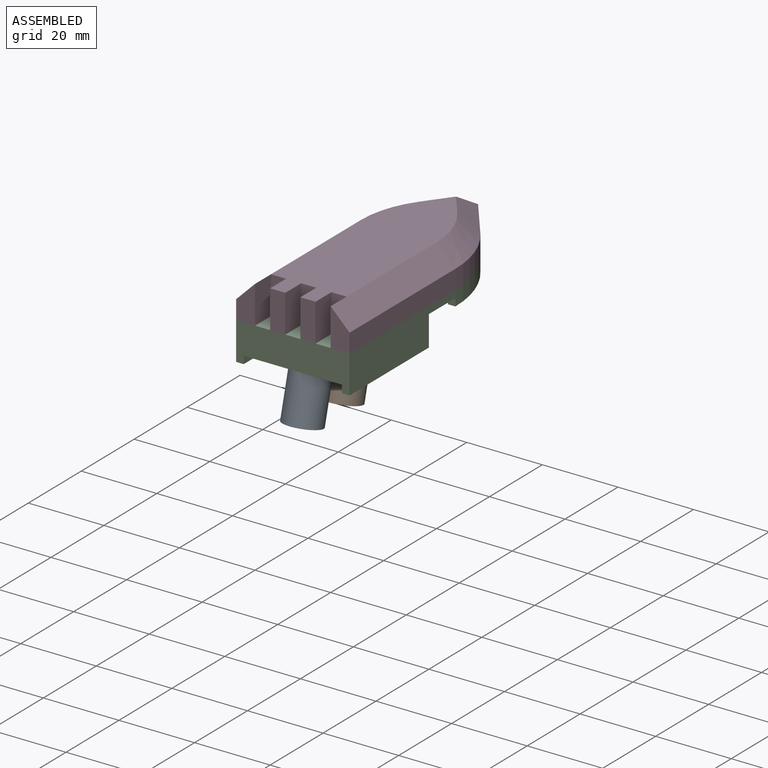
[diagram: assembled view]
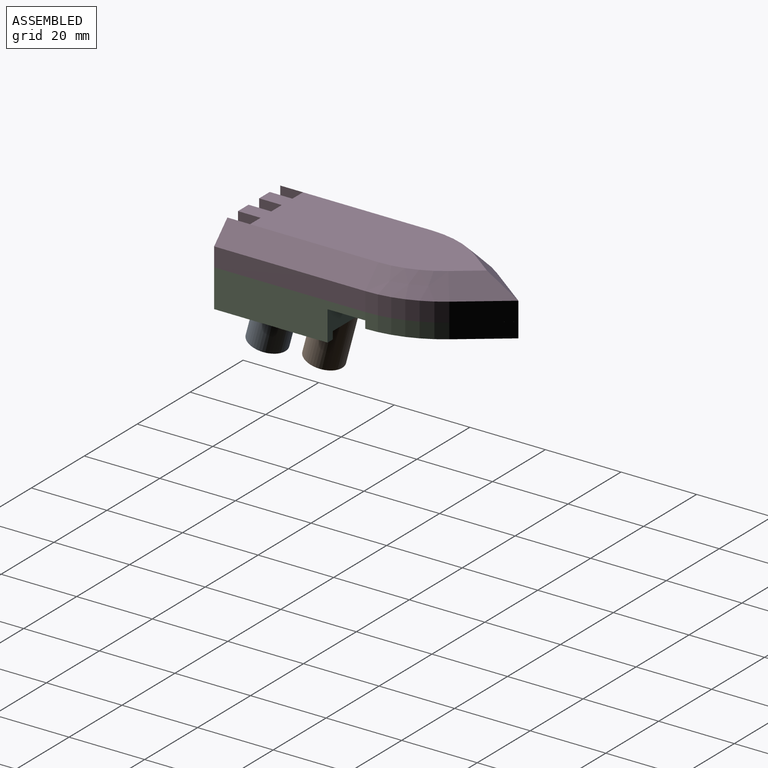
[diagram: assembled view, second angle]
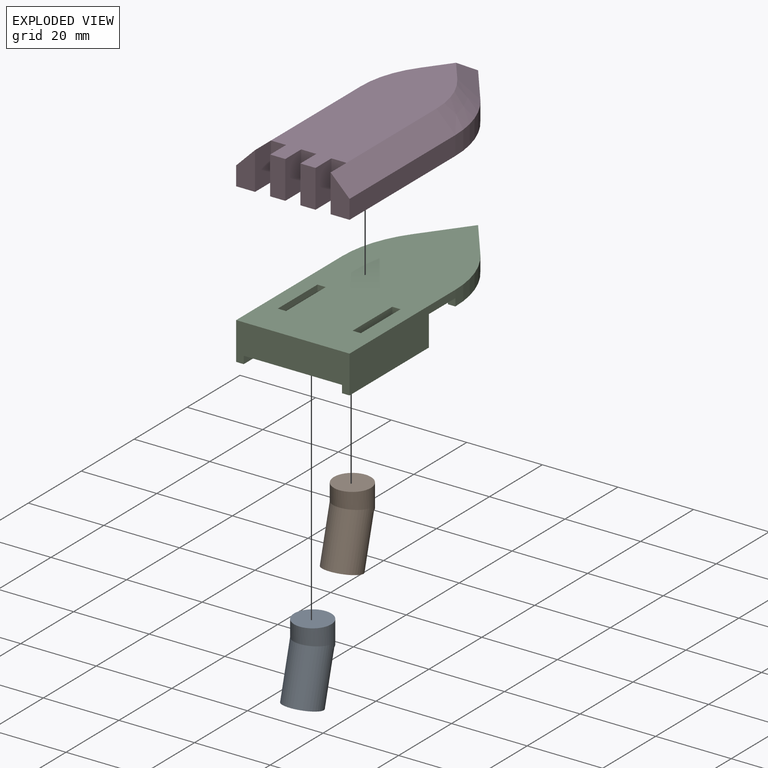
[diagram: exploded view]
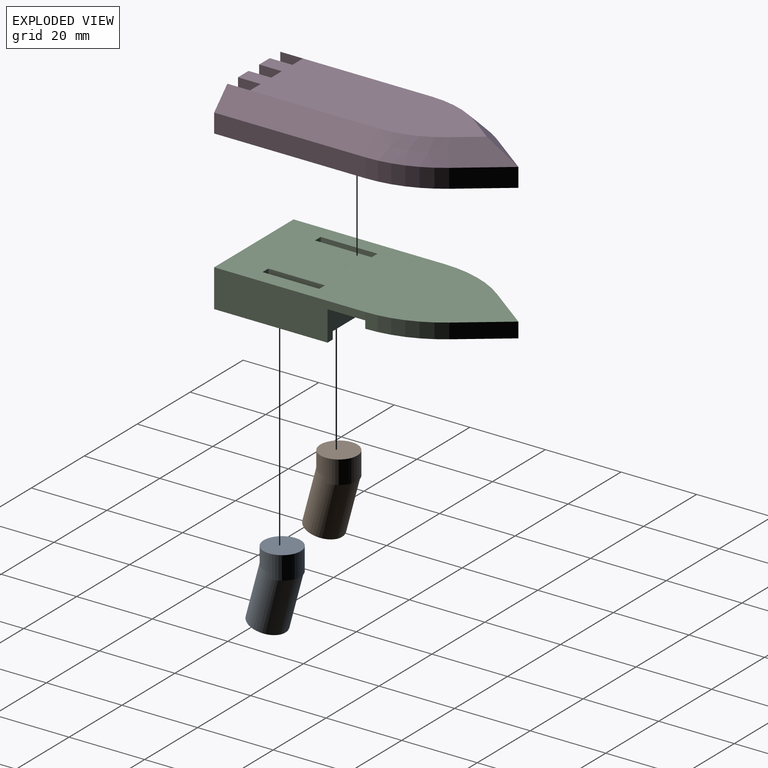
[diagram: exploded view, second angle]
ASSEMBLY  parts=4 mates=3
PART A: 7 faces, bbox 9.8x13.5x20.6 mm
  f0: cylinder r=4.9mm len=17.03mm, axis (0,0.26,0.97), area 448.1mm2, adj f1,f3,f4,f5,f6
  f1: cylinder r=4.9mm len=9.8mm, axis (0,0,-1), area 161.5mm2, adj f0,f2,f4,f5,f6
  f2: plane 9.8x9.8mm, normal (0,0,1), area 75.4mm2, adj f1
  f3: plane 9.8x9.47mm, normal (0,-0.26,-0.97), area 75.4mm2, adj f0
  f4: plane 1.3x0.01mm, normal (0,-1,0), area 0mm2, adj f0,f1,f6
  f5: plane 1.3x0.01mm, normal (0,-1,0), area 0mm2, adj f0,f1,f6
  f6: plane 9.8x4.9mm, normal (0,0,-1), area 2.1mm2, adj f0,f1,f4,f5
PART B: same geometry as A
PART C: 36 faces, bbox 30x70x10 mm
  f0: plane 70x30mm, normal (0,0,-1), area 1713.2mm2, adj f3,f4,f5,f7,f8,f9,f10,f26
  f1: plane 30x26mm, normal (0,0,1), area 622.9mm2, adj f5,f17,f18,f20,f22,f24
  f2: plane 36.67x30mm, normal (0,0,1), area 749.8mm2, adj f3,f4,f11,f12,f13,f14,f15,f16
  f3: plane 40x10mm, normal (1,0,0), area 320mm2, adj f0,f2,f5,f10,f17,f23
  f4: plane 40x10mm, normal (-1,0,0), area 320mm2, adj f0,f2,f5,f9,f17,f25
  f5: plane 30x10mm, normal (0,-1,0), area 248mm2, adj f0,f1,f3,f4,f22,f23,f24,f25
  f6: plane 30x30mm, normal (0,0,1), area 129.3mm2, adj f7,f8,f9,f10,f11,f12,f13,f14
  f7: plane 12x9mm, normal (0.8,0.6,0), area 60mm2, adj f0,f6,f8,f10
  f8: plane 12x9mm, normal (-0.8,0.6,0), area 60mm2, adj f0,f6,f7,f9
  f9: cylinder r=30mm len=18mm, axis (0,0,1), area 77.2mm2, adj f0,f4,f6,f8,f15
  f10: cylinder r=30mm len=18mm, axis (0,0,1), area 77.2mm2, adj f0,f3,f6,f7,f16
  f11: cylinder r=28mm len=16.8mm, axis (0,0,-1), area 36mm2, adj f2,f6,f12,f15
  f12: plane 9.87x7.4mm, normal (0.8,-0.6,0), area 24.7mm2, adj f2,f6,f11,f13
  f13: plane 9.87x7.4mm, normal (-0.8,-0.6,0), area 24.7mm2, adj f2,f6,f12,f14
  f14: cylinder r=28mm len=16.8mm, axis (0,0,-1), area 36mm2, adj f2,f6,f13,f16
  f15: plane 2x2mm, normal (0,-1,0), area 4mm2, adj f2,f6,f9,f11
  f16: plane 2x2mm, normal (0,-1,0), area 4mm2, adj f2,f6,f10,f14
  f17: plane 30x8mm, normal (0,1,0), area 188mm2, adj f1,f2,f3,f4,f22,f23,f24,f25
  f18: cylinder r=5mm len=10mm, axis (0,0,1), area 157.1mm2, adj f1,f19
  f19: plane 10x10mm, normal (0,0,1), area 78.5mm2, adj f18
  f20: cylinder r=5mm len=10mm, axis (0,0,1), area 157.1mm2, adj f1,f21
  f21: plane 10x10mm, normal (0,0,1), area 78.5mm2, adj f20
  f22: plane 30x2mm, normal (-1,0,0), area 60mm2, adj f1,f5,f17,f23
  f23: plane 30x2mm, normal (0,0,1), area 60mm2, adj f3,f5,f17,f22
  f24: plane 30x2mm, normal (1,0,0), area 60mm2, adj f1,f5,f17,f25
  f25: plane 30x2mm, normal (0,0,1), area 60mm2, adj f4,f5,f17,f24
  f26: plane 15x5mm, normal (-1,0,0), area 75mm2, adj f0,f27,f29,f30
  f27: plane 5x2.2mm, normal (0,1,0), area 11mm2, adj f0,f26,f28,f30
  f28: plane 15x5mm, normal (1,0,0), area 75mm2, adj f0,f27,f29,f30
  f29: plane 5x2.2mm, normal (0,-1,0), area 11mm2, adj f0,f26,f28,f30
  f30: plane 15x2.2mm, normal (0,0,-1), area 33mm2, adj f26,f27,f28,f29
  f31: plane 5x2.2mm, normal (0,1,0), area 11mm2, adj f0,f32,f34,f35
  f32: plane 15x5mm, normal (1,0,0), area 75mm2, adj f0,f31,f33,f35
  f33: plane 5x2.2mm, normal (0,-1,0), area 11mm2, adj f0,f32,f34,f35
  f34: plane 15x5mm, normal (-1,0,0), area 75mm2, adj f0,f31,f33,f35
  f35: plane 15x2.2mm, normal (0,0,-1), area 33mm2, adj f31,f32,f33,f34
PART D: 37 faces, bbox 30x70x10 mm
  f0: plane 70x30mm, normal (0,0,-1), area 1641.2mm2, adj f1,f2,f3,f5,f6,f7,f8,f9
  f1: plane 10x4mm, normal (0,-1,0), area 40mm2, adj f0,f4,f21,f25
  f2: plane 10x5mm, normal (0,-1,0), area 37.5mm2, adj f0,f5,f12,f24
  f3: plane 10x5mm, normal (0,-1,0), area 37.5mm2, adj f0,f8,f14,f18
  f4: plane 61.67x20mm, normal (0,0,1), area 1013.5mm2, adj f1,f9,f12,f13,f14,f15,f16,f17
  f5: plane 40x5mm, normal (1,0,0), area 200mm2, adj f0,f2,f11,f12
  f6: plane 12x9mm, normal (0.8,0.6,0), area 75mm2, adj f0,f7,f11,f15
  f7: plane 12x9mm, normal (-0.8,0.6,0), area 75mm2, adj f0,f6,f10,f17
  f8: plane 40x5mm, normal (-1,0,0), area 200mm2, adj f0,f3,f10,f14
  f9: plane 10x4mm, normal (0,-1,0), area 40mm2, adj f0,f4,f19,f22
  f10: cylinder r=30mm len=18mm, axis (0,0,1), area 96.5mm2, adj f0,f7,f8,f16
  f11: cylinder r=30mm len=18mm, axis (0,0,1), area 96.5mm2, adj f0,f5,f6,f13
  f12: plane 40x5mm, normal (0.71,0,0.71), area 282.8mm2, adj f2,f4,f5,f13,f24
  f13: cone r=25mm half-angle=45deg, axis (0,0,-1), area 125.1mm2, adj f4,f11,f12,f15
  f14: plane 40x5mm, normal (-0.71,0,0.71), area 282.8mm2, adj f3,f4,f8,f16,f18
  f15: plane 15x9mm, normal (0.57,0.42,0.71), area 82.5mm2, adj f4,f6,f13,f17
  f16: cone r=25mm half-angle=45deg, axis (0,0,-1), area 125.1mm2, adj f4,f10,f14,f17
  f17: plane 15x9mm, normal (-0.57,0.42,0.71), area 82.5mm2, adj f4,f7,f15,f16
  f18: plane 10x6mm, normal (1,0,0), area 60mm2, adj f0,f3,f14,f20
  f19: plane 10x6mm, normal (-1,0,0), area 60mm2, adj f0,f4,f9,f20
  f20: plane 10x4mm, normal (0,-1,0), area 40mm2, adj f0,f4,f18,f19
  f21: plane 10x6mm, normal (-1,0,0), area 60mm2, adj f0,f1,f4,f23
  f22: plane 10x6mm, normal (1,0,0), area 60mm2, adj f0,f4,f9,f23
  f23: plane 10x4mm, normal (0,-1,0), area 40mm2, adj f0,f4,f21,f22
  f24: plane 10x6mm, normal (-1,0,0), area 60mm2, adj f0,f2,f12,f26
  f25: plane 10x6mm, normal (1,0,0), area 60mm2, adj f0,f1,f4,f26
  f26: plane 10x4mm, normal (0,-1,0), area 40mm2, adj f0,f4,f24,f25
  f27: plane 5x2.2mm, normal (0,1,0), area 11mm2, adj f0,f28,f30,f31
  f28: plane 15x5mm, normal (1,0,0), area 75mm2, adj f0,f27,f29,f31
  f29: plane 5x2.2mm, normal (0,-1,0), area 11mm2, adj f0,f28,f30,f31
  f30: plane 15x5mm, normal (-1,0,0), area 75mm2, adj f0,f27,f29,f31
  f31: plane 15x2.2mm, normal (0,0,-1), area 33mm2, adj f27,f28,f29,f30
  f32: plane 15x5mm, normal (-1,0,0), area 75mm2, adj f0,f33,f35,f36
  f33: plane 5x2.2mm, normal (0,1,0), area 11mm2, adj f0,f32,f34,f36
  f34: plane 15x5mm, normal (1,0,0), area 75mm2, adj f0,f33,f35,f36
  f35: plane 5x2.2mm, normal (0,-1,0), area 11mm2, adj f0,f32,f34,f36
  f36: plane 15x2.2mm, normal (0,0,-1), area 33mm2, adj f32,f33,f34,f35
PLACE A t=(11.41,-11.63,1.13)mm
PLACE B t=(11.41,3.37,1.13)mm
PLACE C rot(axis=(0,1,0),180deg) t=(26.41,-19.13,8.93)mm
PLACE D t=(-3.59,-19.13,8.93)mm
MATE fastened C.f0 <-> D.f0  axis (0,0,1) through (11.41,50.87,8.93)mm
MATE fastened B.f1 <-> C.f18  axis (0,0,1) through (11.41,3.37,5.93)mm
MATE fastened A.f1 <-> C.f20  axis (0,0,1) through (11.41,-11.63,5.93)mm
